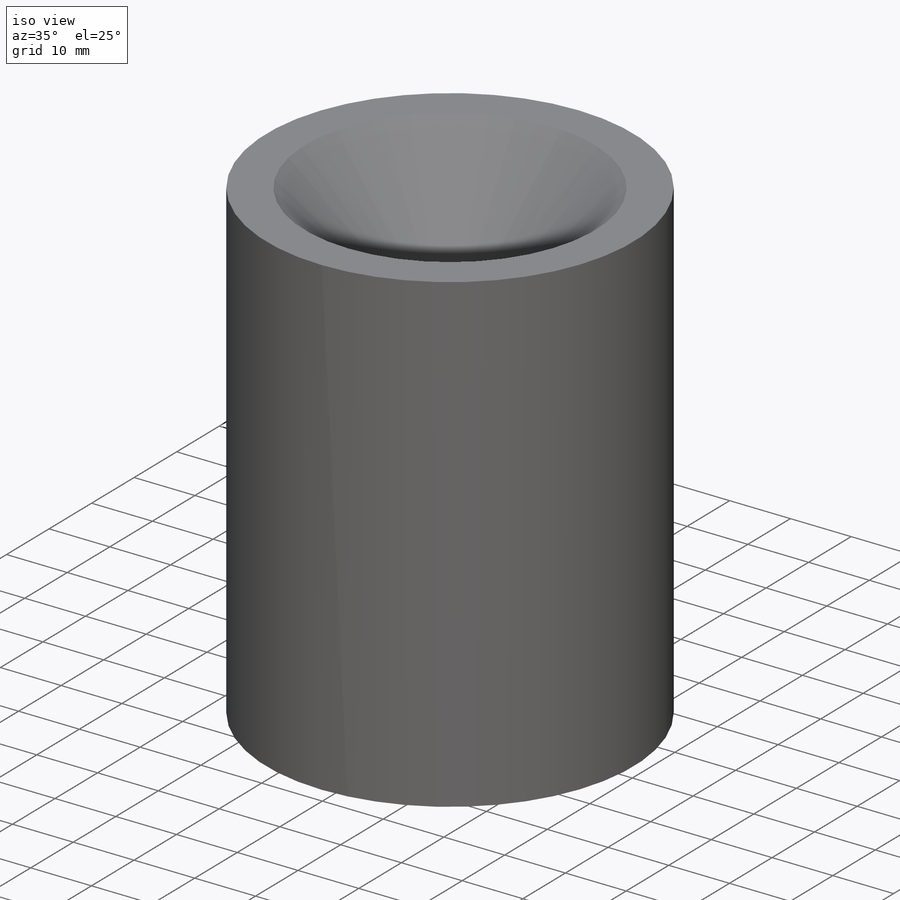
[diagram: iso view]
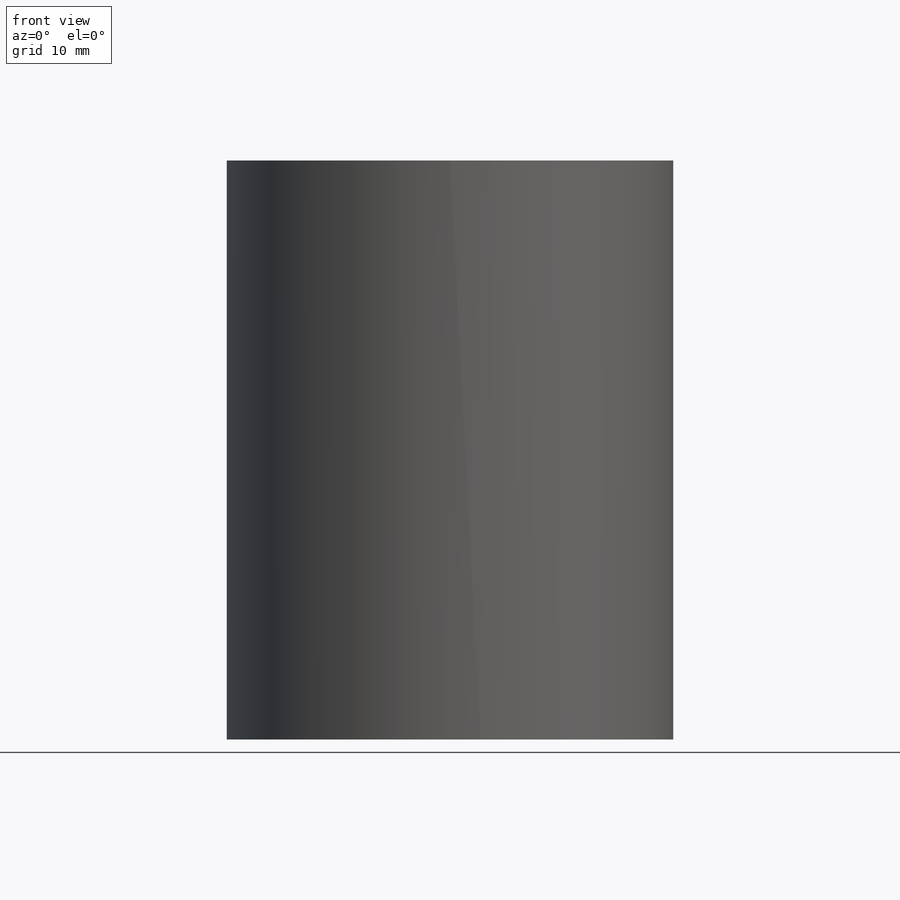
[diagram: front view]
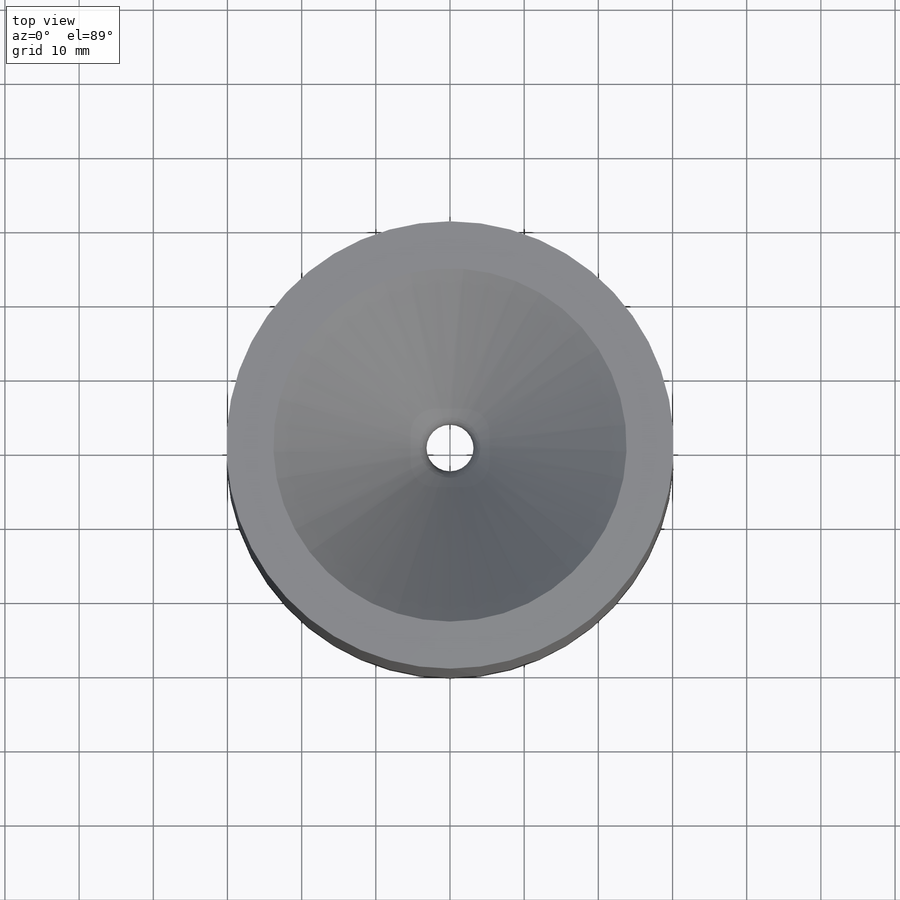
[diagram: top view]
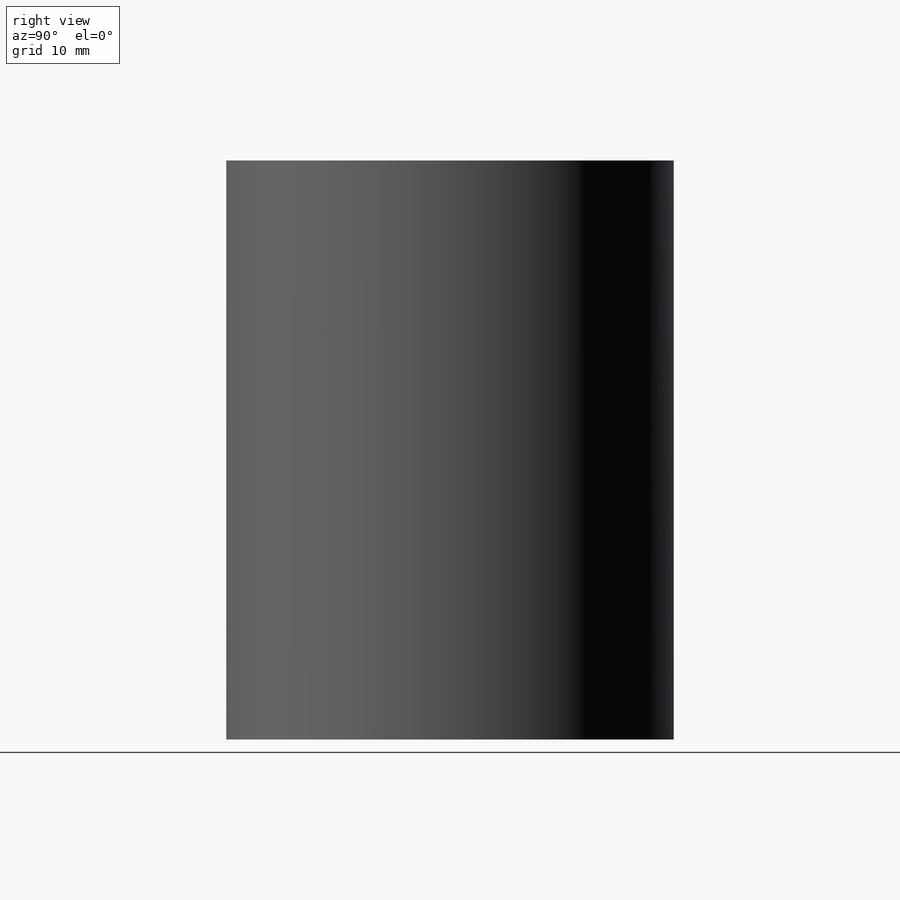
[diagram: right view]
SOLIDWORKS PART (.sldprt)
format: sldprt  version: not decoded by parser v0  size: 233,984 bytes
history: native  units: mm
features: sketch x4, revolve x2, material x1, extrude x1 (+13 scaffold rows collapsed)
feature tree (21):
  scaffold x13  (default folders/planes/origin — collapsed)
  material  "Material <not specified>"
  sketch  "Sketch1"  dims[c1.D7=3.175mm c1.D9=3.175mm c1.D1=3.175mm c1.D2=76.2mm c1.D3=~4.044793mm c2.D3=~183.038481deg c3.D3=76.2mm c4.D3=30.0deg c4.D2=3.175mm c4.D4=3.175mm c4.D5=~19.627624mm c4.D6=6.35mm c4.D1=57.15mm c5.D4=~52.260784mm c6.D4=135.0deg c6.D5=3.175mm c6.D8=~11.728575mm c7.D8=120.0deg c8.D8=76.2mm c8.D1=~1.308643mm c8.D2=30.1625mm c8.D3=3.175mm c9.D1=3.175mm c9.D4=~1.308643mm c10.D4=60.0deg c10.D5=~62.324962mm c11.D4=~3.392383mm c11.D1=3.175mm c11.D3=~26.995431mm c12.D4=~26.995431mm c13.D4=25.0deg c13.D5=3.175mm c13.D3=6.35mm c13.D6=0.0mm c13.D7=26.9875mm c13.D8=~1.309133mm c14.D8=45.0deg c14.D10=~51.066071mm]
  revolve  "Revolve1"  Angle=360deg
  sketch  "Sketch3"  dims[D1=60.452mm]
  sketch  "Sketch4"  dims[D1=60.452mm]
  extrude  "Boss-Extrude2"  Depth=77.978mm
  sketch  "Sketch5"  dims[c1.D7=3.175mm c1.D9=3.175mm c1.D1=3.175mm c1.D2=76.2mm c1.D3=~4.044793mm c2.D3=~183.038481deg c3.D3=76.2mm c4.D3=30.0deg c4.D2=3.175mm c4.D4=3.175mm c4.D5=~19.627624mm c4.D6=6.35mm c4.D1=57.15mm c5.D4=~52.260784mm c6.D4=135.0deg c6.D5=3.175mm c6.D8=~11.728575mm c7.D8=120.0deg c8.D8=76.2mm c8.D1=~1.308643mm c8.D2=30.1625mm c8.D3=3.175mm c9.D1=3.175mm c9.D4=~1.308643mm c10.D4=60.0deg c10.D5=~62.324962mm c11.D4=~3.392383mm c11.D1=3.175mm c11.D3=~26.995431mm c12.D4=~26.995431mm c13.D4=25.0deg c13.D5=3.175mm c13.D3=6.35mm c13.D6=0.0mm c13.D7=26.9875mm c13.D8=~1.309133mm c14.D8=45.0deg c14.D10=~51.066071mm]
  revolve  "Revolve2"  Angle=360deg
decode coverage: 7 of 7 modeling features carry decoded parameters
note: ~ marks probable driven/reference dimensions
note: suppression state not decoded; provenance and decode notes live in map.json
